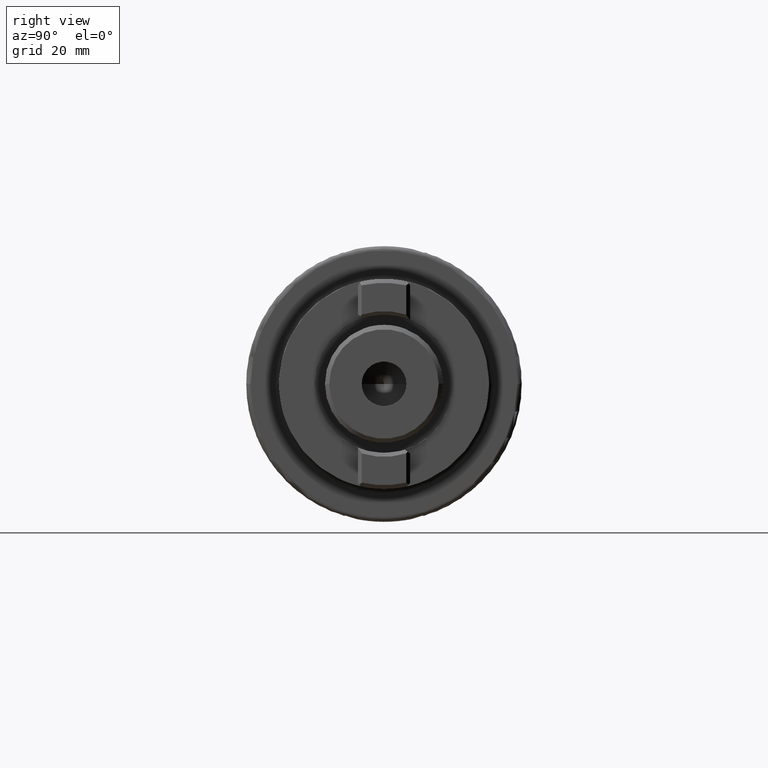
[diagram: clean part render]
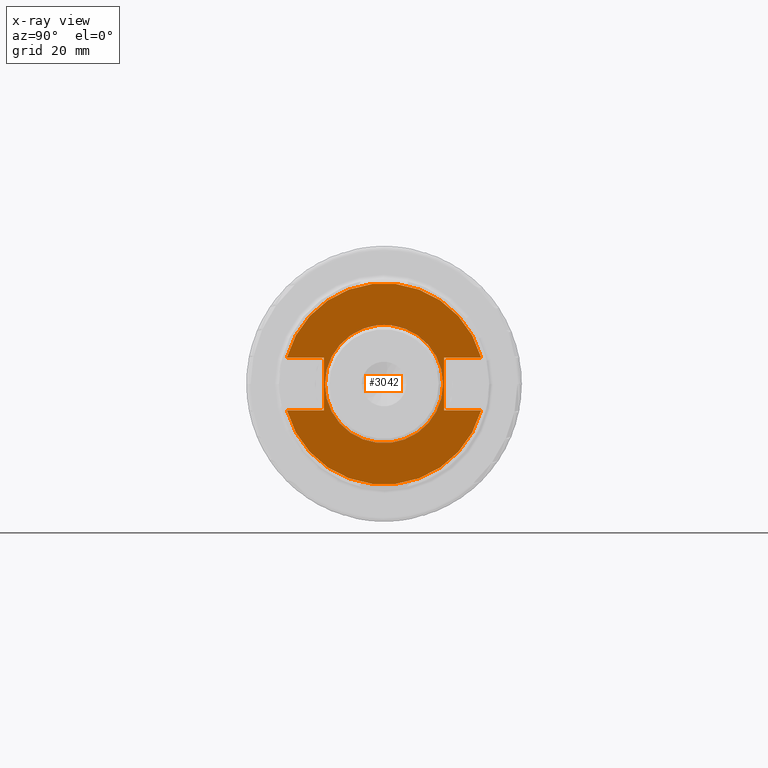
[diagram: x-ray — body ghosted, one internal face saturated and labeled with its STEP entity id]
A machine part, right view, then the same camera in x-ray: the body is ghosted and one INTERNAL B-rep face — a face not visible from any outside direction — is saturated and labeled: STEP entity #3042.
In plain terms, the highlighted planar face has unit normal (1, 0, 0).
Its self-contained STEP definition (entity closure, byte-faithful):
#943=CARTESIAN_POINT('',(4.3E1,0.E0,0.E0));
#944=DIRECTION('',(1.E0,0.E0,0.E0));
#945=DIRECTION('',(0.E0,9.647839802486E-1,2.630434782609E-1));
#946=AXIS2_PLACEMENT_3D('',#943,#944,#945);
#959=CARTESIAN_POINT('',(4.3E1,0.E0,0.E0));
#960=DIRECTION('',(1.E0,0.E0,0.E0));
#961=DIRECTION('',(0.E0,-9.647839802486E-1,-2.630434782609E-1));
#962=AXIS2_PLACEMENT_3D('',#959,#960,#961);
#979=CARTESIAN_POINT('',(4.3E1,0.E0,0.E0));
#980=DIRECTION('',(1.E0,0.E0,0.E0));
#981=DIRECTION('',(0.E0,1.E0,0.E0));
#982=AXIS2_PLACEMENT_3D('',#979,#980,#981);
#984=CARTESIAN_POINT('',(4.3E1,0.E0,0.E0));
#985=DIRECTION('',(-1.E0,0.E0,0.E0));
#986=DIRECTION('',(0.E0,1.E0,0.E0));
#987=AXIS2_PLACEMENT_3D('',#984,#985,#986);
#989=DIRECTION('',(0.E0,0.E0,-1.E0));
#990=VECTOR('',#989,1.21E1);
#991=CARTESIAN_POINT('',(4.3E1,-1.375E1,6.05E0));
#992=LINE('',#991,#990);
#993=DIRECTION('',(0.E0,1.E0,0.E0));
#994=VECTOR('',#993,8.440031545719E0);
#995=CARTESIAN_POINT('',(4.3E1,-2.219003154572E1,6.05E0));
#996=LINE('',#995,#994);
#997=DIRECTION('',(0.E0,-1.E0,0.E0));
#998=VECTOR('',#997,8.440031545719E0);
#999=CARTESIAN_POINT('',(4.3E1,2.219003154572E1,6.05E0));
#1000=LINE('',#999,#998);
#1001=DIRECTION('',(0.E0,0.E0,-1.E0));
#1002=VECTOR('',#1001,1.21E1);
#1003=CARTESIAN_POINT('',(4.3E1,1.375E1,6.05E0));
#1004=LINE('',#1003,#1002);
#1005=DIRECTION('',(0.E0,-1.E0,0.E0));
#1006=VECTOR('',#1005,8.440031545719E0);
#1007=CARTESIAN_POINT('',(4.3E1,2.219003154572E1,-6.05E0));
#1008=LINE('',#1007,#1006);
#1009=DIRECTION('',(0.E0,1.E0,0.E0));
#1010=VECTOR('',#1009,8.440031545719E0);
#1011=CARTESIAN_POINT('',(4.3E1,-2.219003154572E1,-6.05E0));
#1012=LINE('',#1011,#1010);
#1677=CARTESIAN_POINT('',(4.3E1,1.35E1,0.E0));
#1678=CARTESIAN_POINT('',(4.3E1,-1.35E1,0.E0));
#1679=VERTEX_POINT('',#1677);
#1680=VERTEX_POINT('',#1678);
#1711=CARTESIAN_POINT('',(4.3E1,1.375E1,6.05E0));
#1712=CARTESIAN_POINT('',(4.3E1,1.375E1,-6.05E0));
#1713=VERTEX_POINT('',#1711);
#1714=VERTEX_POINT('',#1712);
#1715=CARTESIAN_POINT('',(4.3E1,2.219003154572E1,6.05E0));
#1716=VERTEX_POINT('',#1715);
#1717=CARTESIAN_POINT('',(4.3E1,2.219003154572E1,-6.05E0));
#1718=VERTEX_POINT('',#1717);
#1730=CARTESIAN_POINT('',(4.3E1,-1.375E1,6.05E0));
#1731=VERTEX_POINT('',#1730);
#1732=CARTESIAN_POINT('',(4.3E1,-1.375E1,-6.05E0));
#1733=VERTEX_POINT('',#1732);
#1738=CARTESIAN_POINT('',(4.3E1,-2.219003154572E1,6.05E0));
#1739=VERTEX_POINT('',#1738);
#1740=CARTESIAN_POINT('',(4.3E1,-2.219003154572E1,-6.05E0));
#1741=VERTEX_POINT('',#1740);
#3019=CARTESIAN_POINT('',(4.3E1,0.E0,0.E0));
#3020=DIRECTION('',(1.E0,0.E0,0.E0));
#3021=DIRECTION('',(0.E0,-1.E0,0.E0));
#3022=AXIS2_PLACEMENT_3D('',#3019,#3020,#3021);
#3023=PLANE('',#3022);
#3024=ORIENTED_EDGE('',*,*,#2952,.F.);
#3025=ORIENTED_EDGE('',*,*,#2969,.F.);
#3026=ORIENTED_EDGE('',*,*,#2983,.F.);
#3027=ORIENTED_EDGE('',*,*,#3008,.T.);
#3029=ORIENTED_EDGE('',*,*,#3028,.T.);
#3031=ORIENTED_EDGE('',*,*,#3030,.F.);
#3032=ORIENTED_EDGE('',*,*,#2994,.F.);
#3033=ORIENTED_EDGE('',*,*,#2935,.T.);
#3034=EDGE_LOOP('',(#3024,#3025,#3026,#3027,#3029,#3031,#3032,#3033));
#3035=FACE_OUTER_BOUND('',#3034,.F.);
#3037=ORIENTED_EDGE('',*,*,#3036,.T.);
#3039=ORIENTED_EDGE('',*,*,#3038,.F.);
#3040=EDGE_LOOP('',(#3037,#3039));
#3041=FACE_BOUND('',#3040,.F.);
#3042=ADVANCED_FACE('',(#3035,#3041),#3023,.T.);
#947=CIRCLE('',#946,2.3E1);
#963=CIRCLE('',#962,2.3E1);
#983=CIRCLE('',#982,1.35E1);
#988=CIRCLE('',#987,1.35E1);
#2935=EDGE_CURVE('',#1741,#1733,#1012,.T.);
#2952=EDGE_CURVE('',#1731,#1733,#992,.T.);
#2969=EDGE_CURVE('',#1739,#1731,#996,.T.);
#2983=EDGE_CURVE('',#1716,#1739,#947,.T.);
#2994=EDGE_CURVE('',#1741,#1718,#963,.T.);
#3008=EDGE_CURVE('',#1716,#1713,#1000,.T.);
#3028=EDGE_CURVE('',#1713,#1714,#1004,.T.);
#3030=EDGE_CURVE('',#1718,#1714,#1008,.T.);
#3036=EDGE_CURVE('',#1679,#1680,#983,.T.);
#3038=EDGE_CURVE('',#1679,#1680,#988,.T.);